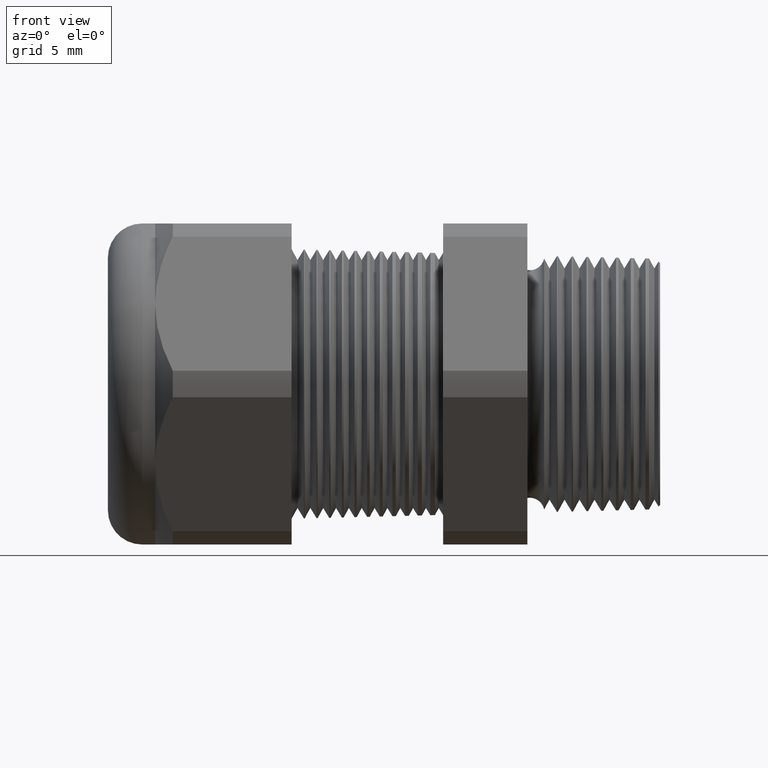
[diagram: clean part render]
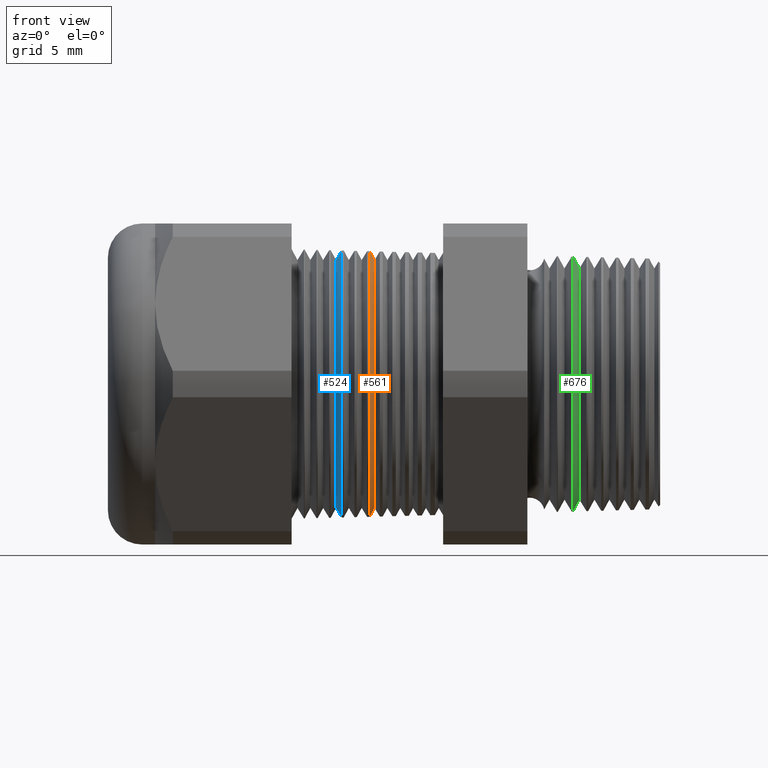
[diagram: same view with three faces highlighted in distinct colors, each labeled with its STEP entity id]
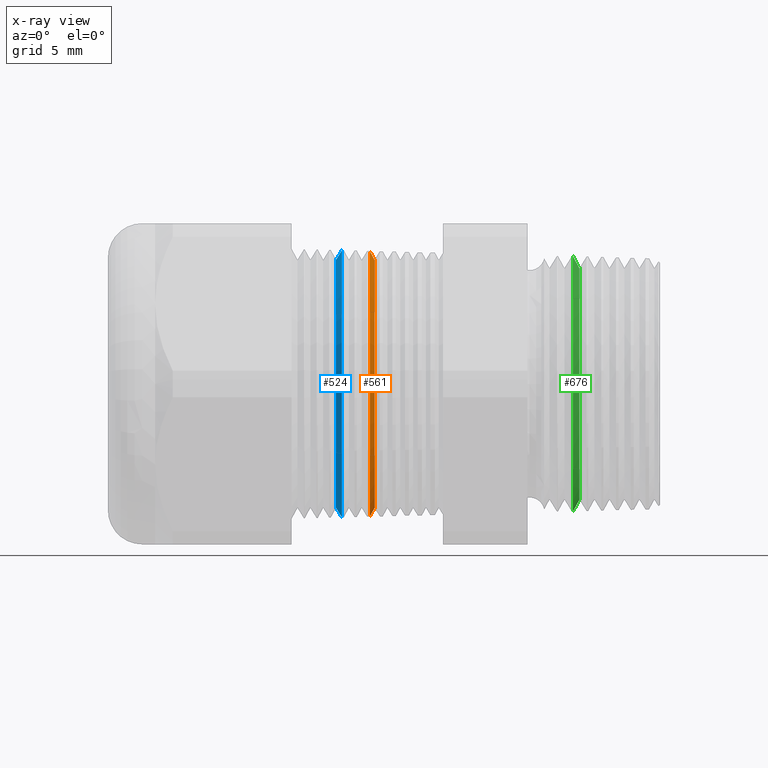
[diagram: x-ray of the same camera — body ghosted, the three highlighted faces saturated]
A machine part, front view with three faces highlighted in distinct colors.
The next image is the same camera in x-ray (body ghosted, the three faces saturated) — at least one of them is partly hidden behind the body in this view.
Their STEP definitions:

[orange] entity #561 — the highlighted conical surface has half-angle 61.5 deg.
#561 = ADVANCED_FACE ( 'NONE', ( #2324 ), #2323, .T. ) ;
#562 = ORIENTED_EDGE ( 'NONE', *, *, #1112, .F. ) ;
#563 = ORIENTED_EDGE ( 'NONE', *, *, #564, .F. ) ;
#564 = EDGE_CURVE ( 'NONE', #1136, #1135, #2318, .T. ) ;
#565 = ORIENTED_EDGE ( 'NONE', *, *, #1178, .T. ) ;
#566 = ORIENTED_EDGE ( 'NONE', *, *, #4985, .T. ) ;
#584 = EDGE_LOOP ( 'NONE', ( #562, #563, #565, #566 ) ) ;
#1112 = EDGE_CURVE ( 'NONE', #1135, #1113, #3225, .T. ) ;
#1113 = VERTEX_POINT ( 'NONE', #3221 ) ;
#1135 = VERTEX_POINT ( 'NONE', #3313 ) ;
#1136 = VERTEX_POINT ( 'NONE', #3312 ) ;
#1178 = EDGE_CURVE ( 'NONE', #1136, #1186, #3352, .T. ) ;
#1186 = VERTEX_POINT ( 'NONE', #3394 ) ;
#2315 = DIRECTION ( 'NONE',  ( 0.0000000000000000000, 0.0000000000000000000, -1.000000000000000000 ) ) ;
#2316 = DIRECTION ( 'NONE',  ( 1.000000000000000000, 0.0000000000000000000, 0.0000000000000000000 ) ) ;
#2317 = AXIS2_PLACEMENT_3D ( 'NONE', #2322, #2316, #2315 ) ;
#2318 = CIRCLE ( 'NONE', #2317, 0.2896307351718082600 ) ;
#2319 = DIRECTION ( 'NONE',  ( 0.0000000000000000000, 0.0000000000000000000, 1.000000000000000000 ) ) ;
#2320 = DIRECTION ( 'NONE',  ( -1.000000000000000000, 0.0000000000000000000, 0.0000000000000000000 ) ) ;
#2321 = AXIS2_PLACEMENT_3D ( 'NONE', #2328, #2320, #2319 ) ;
#2322 = CARTESIAN_POINT ( 'NONE',  ( -0.6670917547981793900, 0.0000000000000000000, 0.0000000000000000000 ) ) ;
#2323 = CONICAL_SURFACE ( 'NONE', #2321, 0.3150000000000000000, 1.073377489976500500 ) ;
#2324 = FACE_OUTER_BOUND ( 'NONE', #584, .T. ) ;
#2328 = CARTESIAN_POINT ( 'NONE',  ( -0.6808661417322833300, 0.0000000000000000000, 0.0000000000000000000 ) ) ;
#3221 = CARTESIAN_POINT ( 'NONE',  ( -0.6782700275461079900, 3.800060863805231400E-017, -0.3102185524750839000 ) ) ;
#3222 = DIRECTION ( 'NONE',  ( -0.4771587602596191200, 1.076240564057387800E-016, -0.8788171126619595000 ) ) ;
#3223 = VECTOR ( 'NONE', #3222, 39.37007874015748100 ) ;
#3224 = CARTESIAN_POINT ( 'NONE',  ( -0.6808661417322833300, 3.857637417314162700E-017, -0.3150000000000000000 ) ) ;
#3225 = LINE ( 'NONE', #3224, #3223 ) ;
#3312 = CARTESIAN_POINT ( 'NONE',  ( -0.6670917547981793900, 0.0000000000000000000, 0.2896307351718082600 ) ) ;
#3313 = CARTESIAN_POINT ( 'NONE',  ( -0.6670917547981793900, 3.673017550437932800E-017, -0.2896307351718082600 ) ) ;
#3349 = DIRECTION ( 'NONE',  ( -0.4771587602596191200, 0.0000000000000000000, 0.8788171126619595000 ) ) ;
#3350 = VECTOR ( 'NONE', #3349, 39.37007874015748100 ) ;
#3351 = CARTESIAN_POINT ( 'NONE',  ( -0.6808661417322833300, 0.0000000000000000000, 0.3150000000000000000 ) ) ;
#3352 = LINE ( 'NONE', #3351, #3350 ) ;
#3394 = CARTESIAN_POINT ( 'NONE',  ( -0.6782700275461079900, 0.0000000000000000000, 0.3102185524750839000 ) ) ;
#4414 = DIRECTION ( 'NONE',  ( 0.0000000000000000000, 0.0000000000000000000, 1.000000000000000000 ) ) ;
#4415 = DIRECTION ( 'NONE',  ( 1.000000000000000000, 0.0000000000000000000, 0.0000000000000000000 ) ) ;
#4416 = AXIS2_PLACEMENT_3D ( 'NONE', #4422, #4415, #4414 ) ;
#4417 = CIRCLE ( 'NONE', #4416, 0.3102185524750839000 ) ;
#4422 = CARTESIAN_POINT ( 'NONE',  ( -0.6782700275461079900, 0.0000000000000000000, 0.0000000000000000000 ) ) ;
#4985 = EDGE_CURVE ( 'NONE', #1186, #1113, #4417, .T. ) ;

[blue] entity #524 — the highlighted conical surface has half-angle 58.5 deg.
#129 = VERTEX_POINT ( 'NONE', #1606 ) ;
#130 = VERTEX_POINT ( 'NONE', #1605 ) ;
#132 = EDGE_CURVE ( 'NONE', #130, #133, #1604, .T. ) ;
#133 = VERTEX_POINT ( 'NONE', #1600 ) ;
#136 = VERTEX_POINT ( 'NONE', #1599 ) ;
#191 = EDGE_CURVE ( 'NONE', #129, #136, #1746, .T. ) ;
#521 = EDGE_CURVE ( 'NONE', #130, #129, #2247, .T. ) ;
#524 = ADVANCED_FACE ( 'NONE', ( #2243 ), #2242, .T. ) ;
#525 = EDGE_LOOP ( 'NONE', ( #526, #527, #528, #529 ) ) ;
#526 = ORIENTED_EDGE ( 'NONE', *, *, #132, .F. ) ;
#527 = ORIENTED_EDGE ( 'NONE', *, *, #521, .T. ) ;
#528 = ORIENTED_EDGE ( 'NONE', *, *, #191, .T. ) ;
#529 = ORIENTED_EDGE ( 'NONE', *, *, #4817, .T. ) ;
#1599 = CARTESIAN_POINT ( 'NONE',  ( -0.7434299194138576100, 3.819977376450094100E-017, -0.3119248242929889000 ) ) ;
#1600 = CARTESIAN_POINT ( 'NONE',  ( -0.7434299194138576100, 0.0000000000000000000, 0.3119248242929889000 ) ) ;
#1601 = DIRECTION ( 'NONE',  ( 0.5224985647159348100, 1.044183048100722500E-016, 0.8526401643541007300 ) ) ;
#1602 = VECTOR ( 'NONE', #1601, 39.37007874015748900 ) ;
#1603 = CARTESIAN_POINT ( 'NONE',  ( -0.7570917547981793600, 3.546953527628497700E-017, 0.2896307351718082600 ) ) ;
#1604 = LINE ( 'NONE', #1603, #1602 ) ;
#1605 = CARTESIAN_POINT ( 'NONE',  ( -0.7570917547981793600, 0.0000000000000000000, 0.2896307351718082600 ) ) ;
#1606 = CARTESIAN_POINT ( 'NONE',  ( -0.7570917547981793600, 3.687656511454631100E-017, -0.2896307351718082600 ) ) ;
#1738 = DIRECTION ( 'NONE',  ( 0.5224985647159348100, 0.0000000000000000000, -0.8526401643541007300 ) ) ;
#1739 = VECTOR ( 'NONE', #1738, 39.37007874015748900 ) ;
#1740 = CARTESIAN_POINT ( 'NONE',  ( -0.7570917547981793600, 0.0000000000000000000, -0.2896307351718082600 ) ) ;
#1746 = LINE ( 'NONE', #1740, #1739 ) ;
#2236 = DIRECTION ( 'NONE',  ( 0.0000000000000000000, 0.0000000000000000000, -1.000000000000000000 ) ) ;
#2237 = DIRECTION ( 'NONE',  ( 1.000000000000000000, 0.0000000000000000000, 0.0000000000000000000 ) ) ;
#2238 = CARTESIAN_POINT ( 'NONE',  ( -0.7570917547981793600, 0.0000000000000000000, 0.0000000000000000000 ) ) ;
#2239 = AXIS2_PLACEMENT_3D ( 'NONE', #2238, #2237, #2236 ) ;
#2242 = CONICAL_SURFACE ( 'NONE', #2239, 0.2896307351718082600, 1.021017612416699200 ) ;
#2243 = FACE_OUTER_BOUND ( 'NONE', #525, .T. ) ;
#2244 = DIRECTION ( 'NONE',  ( 0.0000000000000000000, 0.0000000000000000000, -1.000000000000000000 ) ) ;
#2245 = DIRECTION ( 'NONE',  ( 1.000000000000000000, 0.0000000000000000000, 0.0000000000000000000 ) ) ;
#2246 = AXIS2_PLACEMENT_3D ( 'NONE', #2252, #2245, #2244 ) ;
#2247 = CIRCLE ( 'NONE', #2246, 0.2896307351718082600 ) ;
#2252 = CARTESIAN_POINT ( 'NONE',  ( -0.7570917547981793600, 0.0000000000000000000, 0.0000000000000000000 ) ) ;
#4068 = CIRCLE ( 'NONE', #4123, 0.3119248242929889600 ) ;
#4120 = DIRECTION ( 'NONE',  ( 0.0000000000000000000, 0.0000000000000000000, -1.000000000000000000 ) ) ;
#4121 = DIRECTION ( 'NONE',  ( -1.000000000000000000, 0.0000000000000000000, 0.0000000000000000000 ) ) ;
#4122 = CARTESIAN_POINT ( 'NONE',  ( -0.7434299194138576100, 0.0000000000000000000, 0.0000000000000000000 ) ) ;
#4123 = AXIS2_PLACEMENT_3D ( 'NONE', #4122, #4121, #4120 ) ;
#4817 = EDGE_CURVE ( 'NONE', #136, #133, #4068, .T. ) ;

[green] entity #676 — the highlighted conical surface has half-angle 61.5 deg.
#676 = ADVANCED_FACE ( 'NONE', ( #2435 ), #2434, .T. ) ;
#677 = EDGE_LOOP ( 'NONE', ( #729, #730, #732, #733 ) ) ;
#729 = ORIENTED_EDGE ( 'NONE', *, *, #911, .F. ) ;
#730 = ORIENTED_EDGE ( 'NONE', *, *, #731, .F. ) ;
#731 = EDGE_CURVE ( 'NONE', #880, #879, #2549, .T. ) ;
#732 = ORIENTED_EDGE ( 'NONE', *, *, #895, .T. ) ;
#733 = ORIENTED_EDGE ( 'NONE', *, *, #4888, .T. ) ;
#868 = VERTEX_POINT ( 'NONE', #2747 ) ;
#871 = VERTEX_POINT ( 'NONE', #2805 ) ;
#879 = VERTEX_POINT ( 'NONE', #2788 ) ;
#880 = VERTEX_POINT ( 'NONE', #2787 ) ;
#895 = EDGE_CURVE ( 'NONE', #880, #871, #2826, .T. ) ;
#911 = EDGE_CURVE ( 'NONE', #879, #868, #2862, .T. ) ;
#2429 = AXIS2_PLACEMENT_3D ( 'NONE', #2495, #2494, #2493 ) ;
#2434 = CONICAL_SURFACE ( 'NONE', #2429, 0.3005750624174817800, 1.073377489976501400 ) ;
#2435 = FACE_OUTER_BOUND ( 'NONE', #677, .T. ) ;
#2493 = DIRECTION ( 'NONE',  ( 0.0000000000000000000, 0.0000000000000000000, 1.000000000000000000 ) ) ;
#2494 = DIRECTION ( 'NONE',  ( -1.000000000000000000, 0.0000000000000000000, 0.0000000000000000000 ) ) ;
#2495 = CARTESIAN_POINT ( 'NONE',  ( -0.2049999999999999600, 0.0000000000000000000, 0.0000000000000000000 ) ) ;
#2541 = DIRECTION ( 'NONE',  ( 0.0000000000000000000, 0.0000000000000000000, -1.000000000000000000 ) ) ;
#2542 = DIRECTION ( 'NONE',  ( 1.000000000000000000, 0.0000000000000000000, 0.0000000000000000000 ) ) ;
#2543 = CARTESIAN_POINT ( 'NONE',  ( -0.1884707356790751900, 0.0000000000000000000, 0.0000000000000000000 ) ) ;
#2544 = AXIS2_PLACEMENT_3D ( 'NONE', #2543, #2542, #2541 ) ;
#2549 = CIRCLE ( 'NONE', #2544, 0.2701319446236517000 ) ;
#2747 = CARTESIAN_POINT ( 'NONE',  ( -0.2034856000580643200, 3.647304855553810500E-017, -0.2977858846946140300 ) ) ;
#2787 = CARTESIAN_POINT ( 'NONE',  ( -0.1884707356790751900, 0.0000000000000000000, 0.2701319446236517000 ) ) ;
#2788 = CARTESIAN_POINT ( 'NONE',  ( -0.1884707356790751900, 3.477493759266634500E-017, -0.2701319446236517000 ) ) ;
#2805 = CARTESIAN_POINT ( 'NONE',  ( -0.2034856000580643200, 0.0000000000000000000, 0.2977858846946139800 ) ) ;
#2823 = DIRECTION ( 'NONE',  ( -0.4771587602596184000, 0.0000000000000000000, 0.8788171126619600500 ) ) ;
#2824 = VECTOR ( 'NONE', #2823, 39.37007874015747400 ) ;
#2825 = CARTESIAN_POINT ( 'NONE',  ( -0.2049999999999999600, 0.0000000000000000000, 0.3005750624174817800 ) ) ;
#2826 = LINE ( 'NONE', #2825, #2824 ) ;
#2855 = DIRECTION ( 'NONE',  ( -0.4771587602596184000, 1.076240564057388400E-016, -0.8788171126619600500 ) ) ;
#2856 = VECTOR ( 'NONE', #2855, 39.37007874015747400 ) ;
#2857 = CARTESIAN_POINT ( 'NONE',  ( -0.2049999999999999600, 3.680982880930849200E-017, -0.3005750624174817800 ) ) ;
#2862 = LINE ( 'NONE', #2857, #2856 ) ;
#4233 = DIRECTION ( 'NONE',  ( 0.0000000000000000000, 0.0000000000000000000, 1.000000000000000000 ) ) ;
#4234 = DIRECTION ( 'NONE',  ( 1.000000000000000000, 0.0000000000000000000, 0.0000000000000000000 ) ) ;
#4235 = CARTESIAN_POINT ( 'NONE',  ( -0.2034856000580643200, 0.0000000000000000000, 0.0000000000000000000 ) ) ;
#4236 = AXIS2_PLACEMENT_3D ( 'NONE', #4235, #4234, #4233 ) ;
#4237 = CIRCLE ( 'NONE', #4236, 0.2977858846946139800 ) ;
#4888 = EDGE_CURVE ( 'NONE', #871, #868, #4237, .T. ) ;